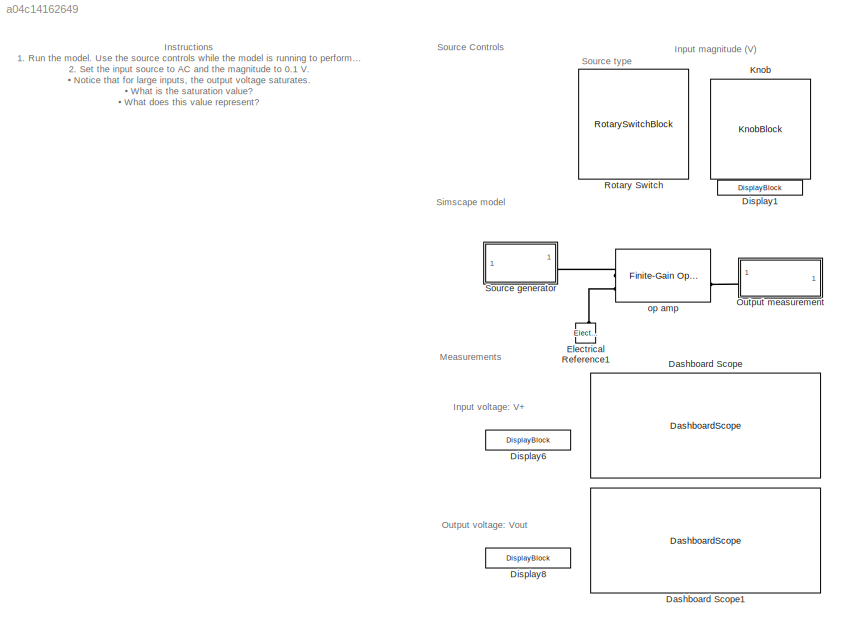
MODEL slx_a04c14162649
KIND model
CONFIG AbsTol = auto
CONFIG EnableMultiTasking = off
CONFIG FixedStep = auto
CONFIG MaxStep = 1e-4
CONFIG MinStep = auto
CONFIG RelTol = 1e-3
CONFIG SampleTimeConstraint = Unconstrained
CONFIG SolverName = VariableStepAuto
CONFIG StartTime = 0.0
CONFIG StopTime = inf
BLOCK [DashboardScope] Dashboard Scope
  ScaleAtStop = off
  TimeSpan = 0.10000000000000001
  UpdateMode = Scroll
  Ymax = 0.15
  Ymin = -0.15
BLOCK [DashboardScope] Dashboard Scope1
  ScaleAtStop = off
  TimeSpan = 0.10000000000000001
  UpdateMode = Scroll
  Ymax = 16
  Ymin = -16
BLOCK [DisplayBlock] Display1
  Alignment = Right
  Format = Custom
  FormatString = %0.4f
  LabelPosition = Hide
  Transparency = 1
BLOCK [DisplayBlock] Display6
  Alignment = Right
  Format = Custom
  FormatString = %0.4f
  LabelPosition = Hide
  Transparency = 1
BLOCK [DisplayBlock] Display8
  Alignment = Right
  Format = Custom
  FormatString = %0.4f
  LabelPosition = Hide
  Transparency = 1
BLOCK [Reference] Electrical Reference1  REF=fl_lib/Electrical/Electrical Elements/Electrical Reference
  NameLocation = right
  SourceBlock = fl_lib/Electrical/Electrical Elements/Electrical Reference
  SourceType = Electrical Reference
BLOCK [KnobBlock] Knob
  LabelPosition = Hide
  ScaleMax = 0.1
  ScaleMin = -0.1
  TickInterval = 0.05
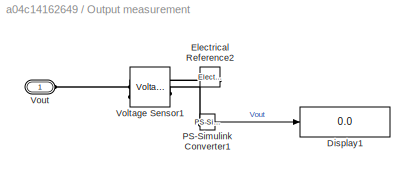
BLOCK [SubSystem] Output measurement
BLOCK [Display] Output measurement/Display1
  Decimation = 1
BLOCK [Reference] Output measurement/Electrical Reference2  REF=fl_lib/Electrical/Electrical Elements/Electrical Reference
  NameLocation = top
  SourceBlock = fl_lib/Electrical/Electrical Elements/Electrical Reference
  SourceType = Electrical Reference
BLOCK [Reference] Output measurement/PS-Simulink Converter1  REF=nesl_utility/PS-Simulink
Converter
  SourceBlock = nesl_utility/PS-Simulink\nConverter
  SourceType = PS-Simulink\nConverter
BLOCK [Reference] Output measurement/Voltage Sensor1  REF=fl_lib/Electrical/Electrical Sensors/Voltage Sensor
  NameLocation = top
  SourceBlock = fl_lib/Electrical/Electrical Sensors/Voltage Sensor
  SourceType = Voltage Sensor
BLOCK [PMIOPort] Output measurement/Vout
  Side = Left
BLOCK [RotarySwitchBlock] Rotary Switch
  LabelPosition = Hide
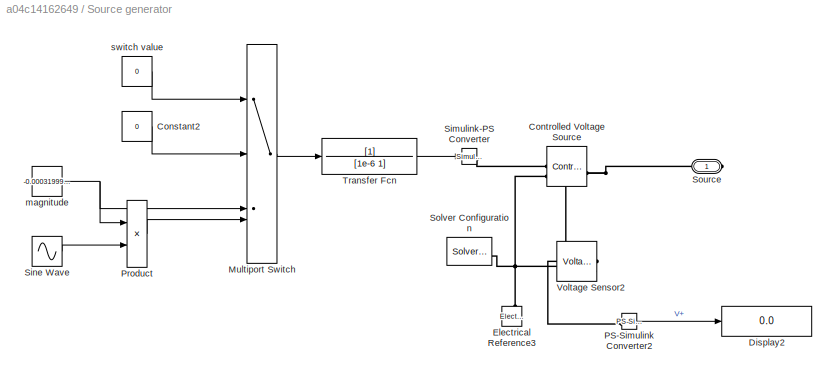
BLOCK [SubSystem] Source generator
BLOCK [Constant] Source generator/Constant2
  Value = 0
BLOCK [Reference] Source generator/Controlled Voltage Source  REF=fl_lib/Electrical/Electrical Sources/Controlled Voltage
Source
  NameLocation = top
  SourceBlock = fl_lib/Electrical/Electrical Sources/Controlled Voltage\nSource
  SourceType = Controlled Voltage\nSource
BLOCK [Display] Source generator/Display2
  Decimation = 1
BLOCK [Reference] Source generator/Electrical Reference3  REF=fl_lib/Electrical/Electrical Elements/Electrical Reference
  NameLocation = right
  SourceBlock = fl_lib/Electrical/Electrical Elements/Electrical Reference
  SourceType = Electrical Reference
BLOCK [MultiPortSwitch] Source generator/Multiport Switch
  DataPortOrder = Zero-based contiguous
  InputSameDT = off
  SaturateOnIntegerOverflow = off
  zeroidx = on
BLOCK [Reference] Source generator/PS-Simulink Converter2  REF=nesl_utility/PS-Simulink
Converter
  SourceBlock = nesl_utility/PS-Simulink\nConverter
  SourceType = PS-Simulink\nConverter
BLOCK [Product] Source generator/Product
BLOCK [Reference] Source generator/Simulink-PS Converter  REF=nesl_utility/Simulink-PS
Converter
  SourceBlock = nesl_utility/Simulink-PS\nConverter
  SourceType = Simulink-PS\nConverter
BLOCK [Sin] Source generator/Sine Wave
  Frequency = 2*pi*60
  SampleTime = 0
BLOCK [Reference] Source generator/Solver Configuration  REF=nesl_utility/Solver
Configuration
  SourceBlock = nesl_utility/Solver\nConfiguration
  SourceType = Solver\nConfiguration
BLOCK [PMIOPort] Source generator/Source
  Side = Right
BLOCK [TransferFcn] Source generator/Transfer Fcn
  Denominator = [1e-6 1]
BLOCK [Reference] Source generator/Voltage Sensor2  REF=fl_lib/Electrical/Electrical Sensors/Voltage Sensor
  SourceBlock = fl_lib/Electrical/Electrical Sensors/Voltage Sensor
  SourceType = Voltage Sensor
BLOCK [Constant] Source generator/magnitude
  Value = -0.0003199971516927025
BLOCK [Constant] Source generator/switch value
  Value = 0
BLOCK [Reference] op amp  REF=ee_lib/Integrated Circuits/Finite-Gain Op-Amp
  SourceBlock = ee_lib/Integrated Circuits/Finite-Gain Op-Amp
  SourceType = Finite-Gain Op-Amp
ANNOTATION (root): Instructions 1. Run the model. Use the source controls while the model is running to perform the following. 2. Set the input source to AC and the magnitude to 0.1 V. • Notice that for large inputs, the output voltage saturates. • What is the saturation value? • What does this value represent? 3. Gradually decrease the source magnitude. • At approximately what input voltage does the op amp display ...<+286ch>
ANNOTATION (root): Input magnitude (V)
ANNOTATION (root): Input voltage: V+
ANNOTATION (root): Measurements
ANNOTATION (root): Output voltage: Vout
ANNOTATION (root): Simscape model
ANNOTATION (root): Source Controls
ANNOTATION (root): Source type
LINE Output measurement/PS-Simulink Converter1:1 -> Output measurement/Display1:1
LINE Source generator/Constant2:1 -> Source generator/Multiport Switch:2
LINE Source generator/Multiport Switch:1 -> Source generator/Transfer Fcn:1
LINE Source generator/PS-Simulink Converter2:1 -> Source generator/Display2:1
LINE Source generator/Product:1 -> Source generator/Multiport Switch:4
LINE Source generator/Sine Wave:1 -> Source generator/Product:2
LINE Source generator/Transfer Fcn:1 -> Source generator/Simulink-PS Converter:1
NET Source generator/magnitude:1 -> Source generator/Multiport Switch:3, Source generator/Product:1
LINE Source generator/switch value:1 -> Source generator/Multiport Switch:1
PLINE Electrical Reference1:LConn1 -- op amp:LConn2
PLINE Output measurement/Electrical Reference2:LConn1 -- Output measurement/Voltage Sensor1:RConn2
PLINE Output measurement/PS-Simulink Converter1:LConn1 -- Output measurement/Voltage Sensor1:RConn1
PLINE Output measurement/Voltage Sensor1:LConn1 -- Output measurement/Vout:RConn1
PLINE Output measurement:LConn1 -- op amp:RConn1
PNET net1: Source generator/Controlled Voltage Source:LConn1 -- Source generator/Source:RConn1 -- Source generator/Voltage Sensor2:LConn1
PLINE Source generator/Controlled Voltage Source:RConn1 -- Source generator/Simulink-PS Converter:RConn1
PNET net2: Source generator/Controlled Voltage Source:RConn2 -- Source generator/Electrical Reference3:LConn1 -- Source generator/Solver Configuration:RConn1 -- Source generator/Voltage Sensor2:RConn2
PLINE Source generator/PS-Simulink Converter2:LConn1 -- Source generator/Voltage Sensor2:RConn1
PLINE Source generator:RConn1 -- op amp:LConn1
note: NET lines group one-source signal fan-out (src -> all destinations, sorted); 1:1 wires keep LINE; PNET lines group multi-terminal physical nets as a canonical sorted terminal list (undirected conserving connections); 2-terminal nets keep the pairwise PLINE form
